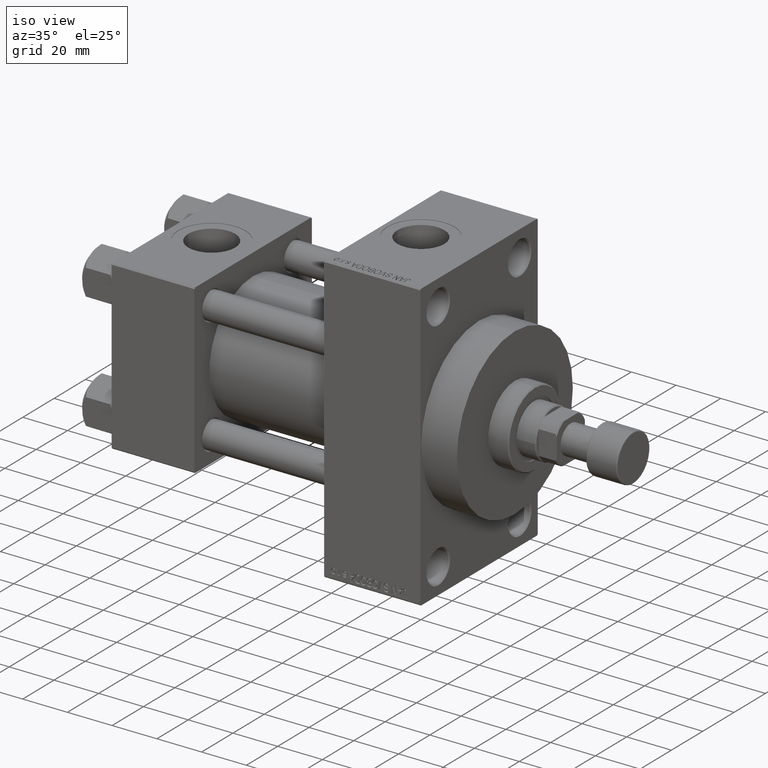
[diagram: clean part render]
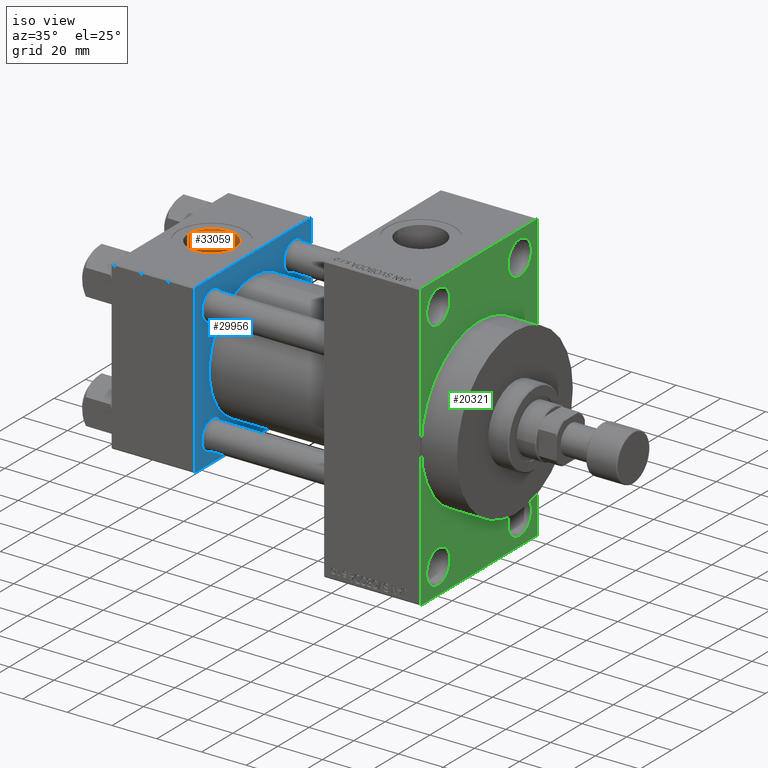
[diagram: same view with three faces highlighted in distinct colors, each labeled with its STEP entity id]
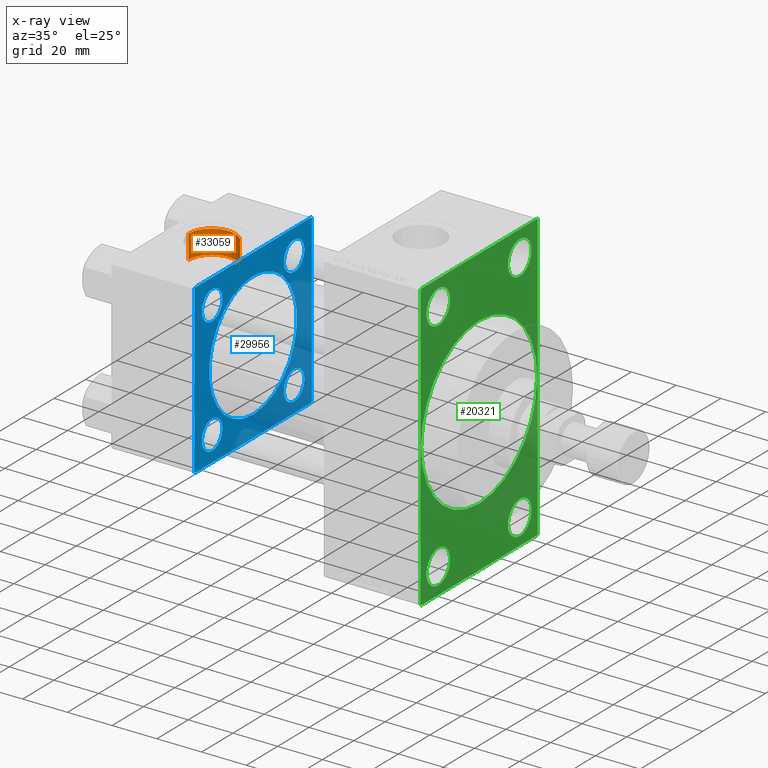
[diagram: x-ray of the same camera — body ghosted, the three highlighted faces saturated]
A machine part, iso view with three faces highlighted in distinct colors.
The next image is the same camera in x-ray (body ghosted, the three faces saturated) — at least one of them is partly hidden behind the body in this view.
Their STEP definitions:

[orange] entity #33059 — the highlighted cylindrical surface (edge-blend (fillet) strip) has radius 10.48 mm, axis along (0, 0, 1).
#441 = DIRECTION ( 'NONE',  ( -0.000000000000000000, -0.000000000000000000, 1.000000000000000000 ) ) ;
#949 = LINE ( 'NONE', #15623, #40663 ) ;
#6053 = ORIENTED_EDGE ( 'NONE', *, *, #36123, .T. ) ;
#6289 = VERTEX_POINT ( 'NONE', #15771 ) ;
#7098 = EDGE_CURVE ( 'NONE', #6289, #25369, #949, .T. ) ;
#8033 = AXIS2_PLACEMENT_3D ( 'NONE', #31068, #23619, #13234 ) ;
#10346 = VERTEX_POINT ( 'NONE', #22815 ) ;
#12453 = EDGE_CURVE ( 'NONE', #10346, #25369, #17772, .T. ) ;
#13082 = CARTESIAN_POINT ( 'NONE',  ( 28.98000000000000043, -5.204170427930421283E-15, 26.69999999999999929 ) ) ;
#13229 = DIRECTION ( 'NONE',  ( 1.000000000000000000, 0.000000000000000000, 0.000000000000000000 ) ) ;
#13234 = DIRECTION ( 'NONE',  ( 1.000000000000000000, 0.000000000000000000, 0.000000000000000000 ) ) ;
#15623 = CARTESIAN_POINT ( 'NONE',  ( 8.019999999999999574, -3.920740582423995006E-15, 26.69999999999999929 ) ) ;
#15771 = CARTESIAN_POINT ( 'NONE',  ( 8.019999999999999574, -3.920740582423995006E-15, 26.69999999999999929 ) ) ;
#17772 = CIRCLE ( 'NONE', #44673, 10.48000000000000043 ) ;
#17916 = VERTEX_POINT ( 'NONE', #13082 ) ;
#18286 = ORIENTED_EDGE ( 'NONE', *, *, #7098, .F. ) ;
#18736 = LINE ( 'NONE', #33411, #44992 ) ;
#19495 = DIRECTION ( 'NONE',  ( -0.000000000000000000, -0.000000000000000000, 1.000000000000000000 ) ) ;
#20487 = DIRECTION ( 'NONE',  ( 0.000000000000000000, 0.000000000000000000, 1.000000000000000000 ) ) ;
#22815 = CARTESIAN_POINT ( 'NONE',  ( 28.98000000000000043, -5.204170427930421283E-15, 37.29999999999999716 ) ) ;
#23619 = DIRECTION ( 'NONE',  ( -0.000000000000000000, -0.000000000000000000, 1.000000000000000000 ) ) ;
#24517 = AXIS2_PLACEMENT_3D ( 'NONE', #32481, #46680, #13229 ) ;
#25369 = VERTEX_POINT ( 'NONE', #26520 ) ;
#26520 = CARTESIAN_POINT ( 'NONE',  ( 8.019999999999999574, -3.920740582423995006E-15, 37.29999999999999716 ) ) ;
#29394 = ORIENTED_EDGE ( 'NONE', *, *, #12453, .T. ) ;
#31068 = CARTESIAN_POINT ( 'NONE',  ( 18.50000000000000000, -5.204170427930421283E-15, 26.69999999999999929 ) ) ;
#32481 = CARTESIAN_POINT ( 'NONE',  ( 18.50000000000000000, -5.204170427930421283E-15, 26.69999999999999929 ) ) ;
#33059 = ADVANCED_FACE ( 'NONE', ( #38284 ), #45744, .F. ) ;
#33411 = CARTESIAN_POINT ( 'NONE',  ( 28.98000000000000043, -5.204170427930421283E-15, 26.69999999999999929 ) ) ;
#36123 = EDGE_CURVE ( 'NONE', #17916, #10346, #18736, .T. ) ;
#38284 = FACE_OUTER_BOUND ( 'NONE', #39140, .T. ) ;
#38351 = CIRCLE ( 'NONE', #24517, 10.48000000000000043 ) ;
#39140 = EDGE_LOOP ( 'NONE', ( #18286, #41873, #6053, #29394 ) ) ;
#40663 = VECTOR ( 'NONE', #19495, 1000.000000000000000 ) ;
#41873 = ORIENTED_EDGE ( 'NONE', *, *, #43477, .F. ) ;
#43477 = EDGE_CURVE ( 'NONE', #17916, #6289, #38351, .T. ) ;
#44673 = AXIS2_PLACEMENT_3D ( 'NONE', #45048, #20487, #45761 ) ;
#44992 = VECTOR ( 'NONE', #441, 1000.000000000000000 ) ;
#45048 = CARTESIAN_POINT ( 'NONE',  ( 18.50000000000000000, -5.204170427930421283E-15, 37.29999999999999716 ) ) ;
#45744 = CYLINDRICAL_SURFACE ( 'NONE', #8033, 10.48000000000000043 ) ;
#45761 = DIRECTION ( 'NONE',  ( 1.000000000000000000, 0.000000000000000000, 0.000000000000000000 ) ) ;
#46680 = DIRECTION ( 'NONE',  ( 0.000000000000000000, 0.000000000000000000, 1.000000000000000000 ) ) ;

[blue] entity #29956 — the highlighted planar face has unit normal (-1, 0, 0).
#508 = PLANE ( 'NONE',  #15817 ) ;
#715 = VERTEX_POINT ( 'NONE', #37687 ) ;
#1204 = CARTESIAN_POINT ( 'NONE',  ( 37.00000000000000000, -2.602085213965210642E-15, 28.00000000000000000 ) ) ;
#1222 = CIRCLE ( 'NONE', #42722, 6.500000000000064837 ) ;
#1443 = CIRCLE ( 'NONE', #28346, 6.500000000000002665 ) ;
#1605 = CARTESIAN_POINT ( 'NONE',  ( 37.00000000000000000, 0.000000000000000000, 0.000000000000000000 ) ) ;
#1805 = ORIENTED_EDGE ( 'NONE', *, *, #38298, .T. ) ;
#2714 = CIRCLE ( 'NONE', #28087, 28.00000000000000000 ) ;
#3109 = DIRECTION ( 'NONE',  ( -1.000000000000000000, 0.000000000000000000, -0.000000000000000000 ) ) ;
#3690 = VERTEX_POINT ( 'NONE', #19574 ) ;
#3820 = CARTESIAN_POINT ( 'NONE',  ( 37.00000000000000000, -2.602085213965210642E-15, 0.000000000000000000 ) ) ;
#4157 = LINE ( 'NONE', #8246, #42033 ) ;
#4175 = ORIENTED_EDGE ( 'NONE', *, *, #42803, .T. ) ;
#4302 = LINE ( 'NONE', #15364, #17447 ) ;
#5209 = CARTESIAN_POINT ( 'NONE',  ( 37.00000000000000000, -37.00000000000002132, -37.50000000000000711 ) ) ;
#5362 = AXIS2_PLACEMENT_3D ( 'NONE', #27795, #20818, #23720 ) ;
#5436 = DIRECTION ( 'NONE',  ( -1.000000000000000000, 0.000000000000000000, -0.000000000000000000 ) ) ;
#5445 = LINE ( 'NONE', #5209, #40502 ) ;
#5984 = EDGE_LOOP ( 'NONE', ( #4175, #22944 ) ) ;
#6001 = CARTESIAN_POINT ( 'NONE',  ( 37.00000000000000000, 37.49999999999999289, 37.50000000000000000 ) ) ;
#6121 = CARTESIAN_POINT ( 'NONE',  ( 37.00000000000000000, 26.14999999999999858, 19.64999999999999858 ) ) ;
#6612 = DIRECTION ( 'NONE',  ( 0.000000000000000000, -1.000000000000000000, -9.251858538542972814E-17 ) ) ;
#6684 = DIRECTION ( 'NONE',  ( 1.000000000000000000, -0.000000000000000000, 0.000000000000000000 ) ) ;
#6796 = EDGE_CURVE ( 'NONE', #31946, #9458, #1443, .T. ) ;
#7085 = DIRECTION ( 'NONE',  ( -1.000000000000000000, 0.000000000000000000, -0.000000000000000000 ) ) ;
#7090 = CARTESIAN_POINT ( 'NONE',  ( 37.00000000000000000, 37.49999999999999289, -37.50000000000000000 ) ) ;
#7680 = CIRCLE ( 'NONE', #5362, 6.500000000000057732 ) ;
#8246 = CARTESIAN_POINT ( 'NONE',  ( 37.00000000000000000, -37.50000000000000711, 36.99999999999999289 ) ) ;
#8383 = CARTESIAN_POINT ( 'NONE',  ( 37.00000000000000000, -37.50000000000000000, -37.00000000000003553 ) ) ;
#8631 = VERTEX_POINT ( 'NONE', #18094 ) ;
#8691 = EDGE_CURVE ( 'NONE', #10800, #715, #39748, .T. ) ;
#8771 = CIRCLE ( 'NONE', #14162, 6.500000000000057732 ) ;
#8826 = DIRECTION ( 'NONE',  ( -1.000000000000000000, 0.000000000000000000, -0.000000000000000000 ) ) ;
#8839 = VERTEX_POINT ( 'NONE', #42115 ) ;
#9205 = DIRECTION ( 'NONE',  ( 0.000000000000000000, 0.000000000000000000, 1.000000000000000000 ) ) ;
#9453 = CARTESIAN_POINT ( 'NONE',  ( 37.00000000000000000, 26.14999999999999858, -19.65000000000000213 ) ) ;
#9458 = VERTEX_POINT ( 'NONE', #6121 ) ;
#9485 = EDGE_CURVE ( 'NONE', #13173, #23902, #7680, .T. ) ;
#9538 = FACE_BOUND ( 'NONE', #19002, .T. ) ;
#9699 = DIRECTION ( 'NONE',  ( -1.000000000000000000, 0.000000000000000000, -0.000000000000000000 ) ) ;
#10729 = CARTESIAN_POINT ( 'NONE',  ( 37.00000000000000000, -37.00000000000002132, -37.50000000000000711 ) ) ;
#10800 = VERTEX_POINT ( 'NONE', #46048 ) ;
#10823 = EDGE_CURVE ( 'NONE', #8839, #36493, #37728, .T. ) ;
#11142 = DIRECTION ( 'NONE',  ( -0.000000000000000000, -0.7071067811865474617, -0.7071067811865474617 ) ) ;
#11260 = DIRECTION ( 'NONE',  ( 0.000000000000000000, 0.000000000000000000, 1.000000000000000000 ) ) ;
#11323 = DIRECTION ( 'NONE',  ( -1.000000000000000000, 0.000000000000000000, -0.000000000000000000 ) ) ;
#12409 = ORIENTED_EDGE ( 'NONE', *, *, #38947, .T. ) ;
#12447 = FACE_BOUND ( 'NONE', #40898, .T. ) ;
#12890 = DIRECTION ( 'NONE',  ( 0.000000000000000000, 0.000000000000000000, 1.000000000000000000 ) ) ;
#13173 = VERTEX_POINT ( 'NONE', #45599 ) ;
#13787 = EDGE_CURVE ( 'NONE', #21054, #47100, #23240, .T. ) ;
#13901 = CARTESIAN_POINT ( 'NONE',  ( 37.00000000000000000, -2.602085213965210642E-15, 0.000000000000000000 ) ) ;
#13997 = CARTESIAN_POINT ( 'NONE',  ( 37.00000000000000000, 26.14999999999999858, 26.15000000000000213 ) ) ;
#14162 = AXIS2_PLACEMENT_3D ( 'NONE', #36082, #3109, #32487 ) ;
#14931 = EDGE_LOOP ( 'NONE', ( #18050, #15229 ) ) ;
#15076 = ORIENTED_EDGE ( 'NONE', *, *, #34837, .F. ) ;
#15124 = DIRECTION ( 'NONE',  ( 1.000000000000000000, -0.000000000000000000, 0.000000000000000000 ) ) ;
#15149 = AXIS2_PLACEMENT_3D ( 'NONE', #29376, #11323, #40928 ) ;
#15229 = ORIENTED_EDGE ( 'NONE', *, *, #9485, .T. ) ;
#15364 = CARTESIAN_POINT ( 'NONE',  ( 37.00000000000000000, 37.49999999999999289, -36.99999999999998579 ) ) ;
#15817 = AXIS2_PLACEMENT_3D ( 'NONE', #1605, #38668, #27841 ) ;
#16551 = ORIENTED_EDGE ( 'NONE', *, *, #10823, .T. ) ;
#16957 = DIRECTION ( 'NONE',  ( 0.000000000000000000, 9.251858538542971581E-17, -1.000000000000000000 ) ) ;
#17447 = VECTOR ( 'NONE', #34531, 1000.000000000000114 ) ;
#18050 = ORIENTED_EDGE ( 'NONE', *, *, #33161, .T. ) ;
#18094 = CARTESIAN_POINT ( 'NONE',  ( 37.00000000000000000, -37.50000000000000711, 36.99999999999999289 ) ) ;
#19002 = EDGE_LOOP ( 'NONE', ( #23182, #36091 ) ) ;
#19195 = EDGE_CURVE ( 'NONE', #9458, #31946, #36343, .T. ) ;
#19295 = AXIS2_PLACEMENT_3D ( 'NONE', #20788, #9699, #32090 ) ;
#19394 = CARTESIAN_POINT ( 'NONE',  ( 37.00000000000000000, -26.14999999999999147, -32.65000000000006963 ) ) ;
#19450 = CARTESIAN_POINT ( 'NONE',  ( 37.00000000000000000, 37.49999999999999289, 37.00000000000000000 ) ) ;
#19574 = CARTESIAN_POINT ( 'NONE',  ( 37.00000000000000000, 36.99999999999997868, -37.50000000000000000 ) ) ;
#20788 = CARTESIAN_POINT ( 'NONE',  ( 37.00000000000000000, -26.14999999999999147, 26.15000000000000924 ) ) ;
#20818 = DIRECTION ( 'NONE',  ( -1.000000000000000000, 0.000000000000000000, -0.000000000000000000 ) ) ;
#20979 = DIRECTION ( 'NONE',  ( 0.000000000000000000, -0.7071067811865474617, 0.7071067811865474617 ) ) ;
#21054 = VERTEX_POINT ( 'NONE', #1204 ) ;
#21057 = LINE ( 'NONE', #32119, #28951 ) ;
#21177 = DIRECTION ( 'NONE',  ( 0.000000000000000000, 0.000000000000000000, -1.000000000000000000 ) ) ;
#21792 = DIRECTION ( 'NONE',  ( 0.000000000000000000, 0.000000000000000000, 1.000000000000000000 ) ) ;
#22078 = ORIENTED_EDGE ( 'NONE', *, *, #38641, .T. ) ;
#22587 = CARTESIAN_POINT ( 'NONE',  ( 37.00000000000000000, 26.14999999999999858, -32.65000000000000568 ) ) ;
#22661 = FACE_OUTER_BOUND ( 'NONE', #44305, .T. ) ;
#22801 = CIRCLE ( 'NONE', #15149, 6.500000000000002665 ) ;
#22944 = ORIENTED_EDGE ( 'NONE', *, *, #28651, .T. ) ;
#23182 = ORIENTED_EDGE ( 'NONE', *, *, #19195, .T. ) ;
#23240 = CIRCLE ( 'NONE', #41685, 28.00000000000000000 ) ;
#23720 = DIRECTION ( 'NONE',  ( 0.000000000000000000, 0.000000000000000000, 1.000000000000000000 ) ) ;
#23902 = VERTEX_POINT ( 'NONE', #19394 ) ;
#24488 = CIRCLE ( 'NONE', #39870, 6.500000000000002665 ) ;
#24604 = VERTEX_POINT ( 'NONE', #8383 ) ;
#25558 = EDGE_LOOP ( 'NONE', ( #44903, #28969 ) ) ;
#26035 = DIRECTION ( 'NONE',  ( 0.000000000000000000, -1.000000000000000000, -9.251858538542971581E-17 ) ) ;
#26575 = VERTEX_POINT ( 'NONE', #9453 ) ;
#26674 = DIRECTION ( 'NONE',  ( 0.000000000000000000, 0.000000000000000000, 1.000000000000000000 ) ) ;
#26838 = CARTESIAN_POINT ( 'NONE',  ( 37.00000000000000000, -26.14999999999999147, 32.65000000000007674 ) ) ;
#27351 = CARTESIAN_POINT ( 'NONE',  ( 37.00000000000000000, 26.14999999999999858, -26.15000000000000213 ) ) ;
#27795 = CARTESIAN_POINT ( 'NONE',  ( 37.00000000000000000, -26.14999999999999147, -26.15000000000000924 ) ) ;
#27841 = DIRECTION ( 'NONE',  ( -0.000000000000000000, 0.000000000000000000, 1.000000000000000000 ) ) ;
#28087 = AXIS2_PLACEMENT_3D ( 'NONE', #13901, #6684, #11260 ) ;
#28346 = AXIS2_PLACEMENT_3D ( 'NONE', #13997, #28695, #9205 ) ;
#28651 = EDGE_CURVE ( 'NONE', #26575, #31898, #22801, .T. ) ;
#28695 = DIRECTION ( 'NONE',  ( -1.000000000000000000, 0.000000000000000000, -0.000000000000000000 ) ) ;
#28811 = VECTOR ( 'NONE', #6612, 1000.000000000000000 ) ;
#28951 = VECTOR ( 'NONE', #16957, 1000.000000000000000 ) ;
#28969 = ORIENTED_EDGE ( 'NONE', *, *, #35190, .F. ) ;
#29376 = CARTESIAN_POINT ( 'NONE',  ( 37.00000000000000000, 26.14999999999999858, -26.15000000000000213 ) ) ;
#29956 = ADVANCED_FACE ( 'NONE', ( #30105, #31450, #12447, #9538, #42280, #22661 ), #508, .F. ) ;
#30105 = FACE_BOUND ( 'NONE', #14931, .T. ) ;
#30972 = DIRECTION ( 'NONE',  ( 0.000000000000000000, 0.000000000000000000, 1.000000000000000000 ) ) ;
#31416 = ORIENTED_EDGE ( 'NONE', *, *, #8691, .T. ) ;
#31450 = FACE_BOUND ( 'NONE', #5984, .T. ) ;
#31898 = VERTEX_POINT ( 'NONE', #22587 ) ;
#31946 = VERTEX_POINT ( 'NONE', #47450 ) ;
#32003 = LINE ( 'NONE', #6001, #44327 ) ;
#32090 = DIRECTION ( 'NONE',  ( 0.000000000000000000, 0.000000000000000000, 1.000000000000000000 ) ) ;
#32119 = CARTESIAN_POINT ( 'NONE',  ( 37.00000000000000000, -37.50000000000000711, 37.49999999999999289 ) ) ;
#32332 = EDGE_CURVE ( 'NONE', #40180, #42581, #32003, .T. ) ;
#32487 = DIRECTION ( 'NONE',  ( 0.000000000000000000, 0.000000000000000000, 1.000000000000000000 ) ) ;
#32494 = EDGE_CURVE ( 'NONE', #3690, #42581, #4302, .T. ) ;
#32568 = EDGE_CURVE ( 'NONE', #8631, #24604, #21057, .T. ) ;
#33161 = EDGE_CURVE ( 'NONE', #23902, #13173, #8771, .T. ) ;
#34531 = DIRECTION ( 'NONE',  ( -0.000000000000000000, 0.7071067811865474617, 0.7071067811865474617 ) ) ;
#34837 = EDGE_CURVE ( 'NONE', #3690, #36443, #39593, .T. ) ;
#35190 = EDGE_CURVE ( 'NONE', #47100, #21054, #2714, .T. ) ;
#36082 = CARTESIAN_POINT ( 'NONE',  ( 37.00000000000000000, -26.14999999999999147, -26.15000000000000924 ) ) ;
#36091 = ORIENTED_EDGE ( 'NONE', *, *, #6796, .T. ) ;
#36186 = EDGE_CURVE ( 'NONE', #36493, #8839, #1222, .T. ) ;
#36343 = CIRCLE ( 'NONE', #37886, 6.500000000000002665 ) ;
#36443 = VERTEX_POINT ( 'NONE', #10729 ) ;
#36493 = VERTEX_POINT ( 'NONE', #26838 ) ;
#36602 = CARTESIAN_POINT ( 'NONE',  ( 37.00000000000000000, 8.269258236473776482E-16, -28.00000000000000000 ) ) ;
#36647 = VECTOR ( 'NONE', #20979, 1000.000000000000114 ) ;
#37687 = CARTESIAN_POINT ( 'NONE',  ( 37.00000000000000000, -37.00000000000000711, 37.49999999999999289 ) ) ;
#37728 = CIRCLE ( 'NONE', #19295, 6.500000000000064837 ) ;
#37886 = AXIS2_PLACEMENT_3D ( 'NONE', #40065, #7085, #21792 ) ;
#37984 = ORIENTED_EDGE ( 'NONE', *, *, #36186, .T. ) ;
#38298 = EDGE_CURVE ( 'NONE', #24604, #36443, #5445, .T. ) ;
#38641 = EDGE_CURVE ( 'NONE', #715, #8631, #4157, .T. ) ;
#38655 = DIRECTION ( 'NONE',  ( 0.000000000000000000, 0.7071067811865524577, -0.7071067811865426878 ) ) ;
#38668 = DIRECTION ( 'NONE',  ( -1.000000000000000000, 0.000000000000000000, -0.000000000000000000 ) ) ;
#38788 = ORIENTED_EDGE ( 'NONE', *, *, #32568, .T. ) ;
#38947 = EDGE_CURVE ( 'NONE', #40180, #10800, #47430, .T. ) ;
#39167 = VECTOR ( 'NONE', #26035, 1000.000000000000000 ) ;
#39177 = CARTESIAN_POINT ( 'NONE',  ( 37.00000000000000000, 37.49999999999999289, -36.99999999999998579 ) ) ;
#39498 = CARTESIAN_POINT ( 'NONE',  ( 37.00000000000000000, 36.99999999999999289, 37.50000000000000000 ) ) ;
#39593 = LINE ( 'NONE', #7090, #28811 ) ;
#39748 = LINE ( 'NONE', #40468, #39167 ) ;
#39870 = AXIS2_PLACEMENT_3D ( 'NONE', #27351, #5436, #12890 ) ;
#40065 = CARTESIAN_POINT ( 'NONE',  ( 37.00000000000000000, 26.14999999999999858, 26.15000000000000213 ) ) ;
#40180 = VERTEX_POINT ( 'NONE', #19450 ) ;
#40186 = ORIENTED_EDGE ( 'NONE', *, *, #32332, .F. ) ;
#40468 = CARTESIAN_POINT ( 'NONE',  ( 37.00000000000000000, 37.49999999999999289, 37.50000000000000000 ) ) ;
#40502 = VECTOR ( 'NONE', #38655, 1000.000000000000000 ) ;
#40757 = ORIENTED_EDGE ( 'NONE', *, *, #32494, .T. ) ;
#40898 = EDGE_LOOP ( 'NONE', ( #16551, #37984 ) ) ;
#40928 = DIRECTION ( 'NONE',  ( 0.000000000000000000, 0.000000000000000000, 1.000000000000000000 ) ) ;
#41685 = AXIS2_PLACEMENT_3D ( 'NONE', #3820, #15124, #26674 ) ;
#41808 = CARTESIAN_POINT ( 'NONE',  ( 37.00000000000000000, -26.14999999999999147, 26.15000000000000924 ) ) ;
#42033 = VECTOR ( 'NONE', #11142, 1000.000000000000114 ) ;
#42115 = CARTESIAN_POINT ( 'NONE',  ( 37.00000000000000000, -26.14999999999999147, 19.64999999999994529 ) ) ;
#42280 = FACE_BOUND ( 'NONE', #25558, .T. ) ;
#42581 = VERTEX_POINT ( 'NONE', #39177 ) ;
#42722 = AXIS2_PLACEMENT_3D ( 'NONE', #41808, #8826, #30972 ) ;
#42803 = EDGE_CURVE ( 'NONE', #31898, #26575, #24488, .T. ) ;
#44305 = EDGE_LOOP ( 'NONE', ( #15076, #40757, #40186, #12409, #31416, #22078, #38788, #1805 ) ) ;
#44327 = VECTOR ( 'NONE', #21177, 1000.000000000000000 ) ;
#44903 = ORIENTED_EDGE ( 'NONE', *, *, #13787, .F. ) ;
#45599 = CARTESIAN_POINT ( 'NONE',  ( 37.00000000000000000, -26.14999999999999147, -19.64999999999995239 ) ) ;
#46048 = CARTESIAN_POINT ( 'NONE',  ( 37.00000000000000000, 36.99999999999999289, 37.50000000000000000 ) ) ;
#47100 = VERTEX_POINT ( 'NONE', #36602 ) ;
#47430 = LINE ( 'NONE', #39498, #36647 ) ;
#47450 = CARTESIAN_POINT ( 'NONE',  ( 37.00000000000000000, 26.14999999999999858, 32.65000000000001279 ) ) ;

[green] entity #20321 — the highlighted planar face has unit normal (-1, 0, 0).
#61 = CARTESIAN_POINT ( 'NONE',  ( 138.0000000000000000, 37.50000000000000000, 63.99999999999998579 ) ) ;
#309 = EDGE_CURVE ( 'NONE', #11282, #1922, #46200, .T. ) ;
#505 = VERTEX_POINT ( 'NONE', #13168 ) ;
#599 = FACE_BOUND ( 'NONE', #46250, .T. ) ;
#1366 = VERTEX_POINT ( 'NONE', #15452 ) ;
#1922 = VERTEX_POINT ( 'NONE', #24531 ) ;
#1935 = CARTESIAN_POINT ( 'NONE',  ( 138.0000000000000000, 26.00000000000000000, -44.99999999999998579 ) ) ;
#2046 = CARTESIAN_POINT ( 'NONE',  ( 138.0000000000000000, 37.50000000000000000, 63.99999999999998579 ) ) ;
#2096 = EDGE_LOOP ( 'NONE', ( #4184, #7494, #45009, #22618, #37029, #36551, #38176, #12054 ) ) ;
#2858 = DIRECTION ( 'NONE',  ( 0.000000000000000000, -0.7071067811865672237, 0.7071067811865279218 ) ) ;
#2897 = CARTESIAN_POINT ( 'NONE',  ( 138.0000000000000000, 26.00000000000000000, -52.49999999999999289 ) ) ;
#3255 = CARTESIAN_POINT ( 'NONE',  ( 138.0000000000000000, 37.50000000000000000, 63.49999999999998579 ) ) ;
#3281 = DIRECTION ( 'NONE',  ( 0.000000000000000000, 0.000000000000000000, 1.000000000000000000 ) ) ;
#3417 = CIRCLE ( 'NONE', #10320, 7.500000000000007105 ) ;
#3777 = EDGE_CURVE ( 'NONE', #505, #37441, #30240, .T. ) ;
#3778 = CARTESIAN_POINT ( 'NONE',  ( 138.0000000000000000, -25.99999999999999645, -52.49999999999999289 ) ) ;
#3790 = AXIS2_PLACEMENT_3D ( 'NONE', #23825, #14149, #10791 ) ;
#4184 = ORIENTED_EDGE ( 'NONE', *, *, #31644, .T. ) ;
#4502 = CARTESIAN_POINT ( 'NONE',  ( 138.0000000000000000, -37.49999999999999289, 63.49999999999994316 ) ) ;
#4975 = LINE ( 'NONE', #30734, #45297 ) ;
#5040 = VECTOR ( 'NONE', #16971, 1000.000000000000000 ) ;
#5141 = VECTOR ( 'NONE', #43427, 1000.000000000000000 ) ;
#5600 = VERTEX_POINT ( 'NONE', #37853 ) ;
#6420 = CARTESIAN_POINT ( 'NONE',  ( 138.0000000000000000, -25.99999999999999645, 52.50000000000000000 ) ) ;
#7494 = ORIENTED_EDGE ( 'NONE', *, *, #40086, .T. ) ;
#7585 = FACE_BOUND ( 'NONE', #31292, .T. ) ;
#7665 = DIRECTION ( 'NONE',  ( -1.000000000000000000, 0.000000000000000000, -0.000000000000000000 ) ) ;
#7755 = CARTESIAN_POINT ( 'NONE',  ( 138.0000000000000000, -37.49999999999999289, 63.99999999999997158 ) ) ;
#7824 = FACE_OUTER_BOUND ( 'NONE', #2096, .T. ) ;
#7999 = EDGE_CURVE ( 'NONE', #37441, #505, #28386, .T. ) ;
#8004 = EDGE_CURVE ( 'NONE', #37920, #15091, #8392, .T. ) ;
#8392 = CIRCLE ( 'NONE', #3790, 7.500000000000007105 ) ;
#9049 = DIRECTION ( 'NONE',  ( 0.000000000000000000, -1.000000000000000000, -1.850371707708594563E-16 ) ) ;
#9613 = CARTESIAN_POINT ( 'NONE',  ( 138.0000000000000000, 36.99999999999997158, 63.99999999999998579 ) ) ;
#9862 = VERTEX_POINT ( 'NONE', #17097 ) ;
#10212 = CARTESIAN_POINT ( 'NONE',  ( 138.0000000000000000, -25.99999999999999645, 44.99999999999999289 ) ) ;
#10320 = AXIS2_PLACEMENT_3D ( 'NONE', #3778, #33618, #47578 ) ;
#10791 = DIRECTION ( 'NONE',  ( 0.000000000000000000, 0.000000000000000000, 1.000000000000000000 ) ) ;
#11246 = DIRECTION ( 'NONE',  ( -1.000000000000000000, 0.000000000000000000, -0.000000000000000000 ) ) ;
#11276 = CARTESIAN_POINT ( 'NONE',  ( 138.0000000000000000, -25.99999999999999645, -60.00000000000000000 ) ) ;
#11282 = VERTEX_POINT ( 'NONE', #3255 ) ;
#11509 = CARTESIAN_POINT ( 'NONE',  ( 138.0000000000000000, 26.00000000000000000, 52.49999999999999289 ) ) ;
#12054 = ORIENTED_EDGE ( 'NONE', *, *, #32670, .T. ) ;
#12657 = AXIS2_PLACEMENT_3D ( 'NONE', #18718, #11246, #25941 ) ;
#13122 = ORIENTED_EDGE ( 'NONE', *, *, #14722, .T. ) ;
#13168 = CARTESIAN_POINT ( 'NONE',  ( 138.0000000000000000, 4.531193156845206793E-15, -37.00000000000000000 ) ) ;
#13675 = DIRECTION ( 'NONE',  ( 0.000000000000000000, 0.000000000000000000, -1.000000000000000000 ) ) ;
#13865 = ORIENTED_EDGE ( 'NONE', *, *, #14788, .T. ) ;
#14097 = CARTESIAN_POINT ( 'NONE',  ( 138.0000000000000000, 0.000000000000000000, 37.00000000000000000 ) ) ;
#14149 = DIRECTION ( 'NONE',  ( -1.000000000000000000, 0.000000000000000000, -0.000000000000000000 ) ) ;
#14246 = VECTOR ( 'NONE', #40253, 1000.000000000000000 ) ;
#14288 = LINE ( 'NONE', #43668, #5141 ) ;
#14477 = DIRECTION ( 'NONE',  ( 0.000000000000000000, 0.000000000000000000, -1.000000000000000000 ) ) ;
#14722 = EDGE_CURVE ( 'NONE', #15091, #37920, #20181, .T. ) ;
#14788 = EDGE_CURVE ( 'NONE', #19483, #9862, #47065, .T. ) ;
#15034 = PLANE ( 'NONE',  #27147 ) ;
#15091 = VERTEX_POINT ( 'NONE', #10212 ) ;
#15452 = CARTESIAN_POINT ( 'NONE',  ( 138.0000000000000000, -36.99999999999995737, 63.99999999999997158 ) ) ;
#15918 = VECTOR ( 'NONE', #35350, 999.9999999999998863 ) ;
#16420 = DIRECTION ( 'NONE',  ( 1.000000000000000000, 0.000000000000000000, 0.000000000000000000 ) ) ;
#16915 = CARTESIAN_POINT ( 'NONE',  ( 138.0000000000000000, 26.00000000000000000, 60.00000000000000000 ) ) ;
#16971 = DIRECTION ( 'NONE',  ( 0.000000000000000000, -1.000000000000000000, -1.850371707708594563E-16 ) ) ;
#17097 = CARTESIAN_POINT ( 'NONE',  ( 138.0000000000000000, 26.00000000000000000, -60.00000000000000000 ) ) ;
#17464 = EDGE_CURVE ( 'NONE', #38563, #40074, #29553, .T. ) ;
#18718 = CARTESIAN_POINT ( 'NONE',  ( 138.0000000000000000, 26.00000000000000000, 52.49999999999999289 ) ) ;
#18984 = DIRECTION ( 'NONE',  ( 0.000000000000000000, 0.000000000000000000, 1.000000000000000000 ) ) ;
#19472 = EDGE_CURVE ( 'NONE', #25392, #47392, #39404, .T. ) ;
#19483 = VERTEX_POINT ( 'NONE', #1935 ) ;
#19767 = ORIENTED_EDGE ( 'NONE', *, *, #34599, .T. ) ;
#20046 = DIRECTION ( 'NONE',  ( 0.000000000000000000, 0.000000000000000000, -1.000000000000000000 ) ) ;
#20181 = CIRCLE ( 'NONE', #30177, 7.500000000000007105 ) ;
#20183 = EDGE_LOOP ( 'NONE', ( #13122, #46985 ) ) ;
#20321 = ADVANCED_FACE ( 'NONE', ( #33343, #7585, #41504, #599, #22979, #7824 ), #15034, .F. ) ;
#20689 = LINE ( 'NONE', #46427, #15918 ) ;
#21488 = ORIENTED_EDGE ( 'NONE', *, *, #19472, .T. ) ;
#21691 = VECTOR ( 'NONE', #36769, 1000.000000000000000 ) ;
#21693 = DIRECTION ( 'NONE',  ( 0.000000000000000000, 0.000000000000000000, 1.000000000000000000 ) ) ;
#22108 = CARTESIAN_POINT ( 'NONE',  ( 138.0000000000000000, 37.49999999999999289, -63.50000000000001421 ) ) ;
#22618 = ORIENTED_EDGE ( 'NONE', *, *, #17464, .T. ) ;
#22922 = CARTESIAN_POINT ( 'NONE',  ( 138.0000000000000000, -25.99999999999999645, -52.49999999999999289 ) ) ;
#22979 = FACE_BOUND ( 'NONE', #47109, .T. ) ;
#23002 = AXIS2_PLACEMENT_3D ( 'NONE', #39203, #35580, #13675 ) ;
#23076 = ORIENTED_EDGE ( 'NONE', *, *, #3777, .F. ) ;
#23158 = DIRECTION ( 'NONE',  ( 0.000000000000000000, 0.000000000000000000, 1.000000000000000000 ) ) ;
#23429 = CIRCLE ( 'NONE', #12657, 7.500000000000007105 ) ;
#23825 = CARTESIAN_POINT ( 'NONE',  ( 138.0000000000000000, -25.99999999999999645, 52.50000000000000000 ) ) ;
#24261 = ORIENTED_EDGE ( 'NONE', *, *, #33573, .T. ) ;
#24306 = ORIENTED_EDGE ( 'NONE', *, *, #7999, .F. ) ;
#24353 = CIRCLE ( 'NONE', #30500, 7.500000000000007105 ) ;
#24372 = CARTESIAN_POINT ( 'NONE',  ( 138.0000000000000000, 0.000000000000000000, 0.000000000000000000 ) ) ;
#24435 = EDGE_LOOP ( 'NONE', ( #39620, #13865 ) ) ;
#24501 = CARTESIAN_POINT ( 'NONE',  ( 138.0000000000000000, -25.99999999999999645, -44.99999999999998579 ) ) ;
#24531 = CARTESIAN_POINT ( 'NONE',  ( 138.0000000000000000, 36.99999999999997158, 63.99999999999998579 ) ) ;
#25392 = VERTEX_POINT ( 'NONE', #24501 ) ;
#25493 = CARTESIAN_POINT ( 'NONE',  ( 138.0000000000000000, 37.49999999999999289, -63.50000000000001421 ) ) ;
#25642 = AXIS2_PLACEMENT_3D ( 'NONE', #24372, #16420, #20046 ) ;
#25689 = DIRECTION ( 'NONE',  ( -1.000000000000000000, 0.000000000000000000, -0.000000000000000000 ) ) ;
#25941 = DIRECTION ( 'NONE',  ( 0.000000000000000000, 0.000000000000000000, 1.000000000000000000 ) ) ;
#26209 = EDGE_CURVE ( 'NONE', #11282, #40074, #40493, .T. ) ;
#26353 = EDGE_CURVE ( 'NONE', #1922, #1366, #31661, .T. ) ;
#26358 = AXIS2_PLACEMENT_3D ( 'NONE', #22922, #33968, #23158 ) ;
#26697 = VERTEX_POINT ( 'NONE', #16915 ) ;
#27114 = AXIS2_PLACEMENT_3D ( 'NONE', #29999, #40593, #30235 ) ;
#27147 = AXIS2_PLACEMENT_3D ( 'NONE', #37181, #29729, #36944 ) ;
#28386 = CIRCLE ( 'NONE', #23002, 37.00000000000000000 ) ;
#29114 = CIRCLE ( 'NONE', #29882, 7.500000000000007105 ) ;
#29553 = LINE ( 'NONE', #22108, #21691 ) ;
#29653 = LINE ( 'NONE', #7755, #30479 ) ;
#29729 = DIRECTION ( 'NONE',  ( -1.000000000000000000, 0.000000000000000000, -0.000000000000000000 ) ) ;
#29882 = AXIS2_PLACEMENT_3D ( 'NONE', #11509, #7665, #18984 ) ;
#29999 = CARTESIAN_POINT ( 'NONE',  ( 138.0000000000000000, 26.00000000000000000, -52.49999999999999289 ) ) ;
#30142 = VECTOR ( 'NONE', #2858, 1000.000000000000000 ) ;
#30177 = AXIS2_PLACEMENT_3D ( 'NONE', #6420, #25689, #3281 ) ;
#30235 = DIRECTION ( 'NONE',  ( 0.000000000000000000, 0.000000000000000000, 1.000000000000000000 ) ) ;
#30240 = CIRCLE ( 'NONE', #25642, 37.00000000000000000 ) ;
#30479 = VECTOR ( 'NONE', #14477, 1000.000000000000000 ) ;
#30500 = AXIS2_PLACEMENT_3D ( 'NONE', #2897, #39974, #21693 ) ;
#30734 = CARTESIAN_POINT ( 'NONE',  ( 138.0000000000000000, 37.49999999999999289, -64.00000000000000000 ) ) ;
#31292 = EDGE_LOOP ( 'NONE', ( #24261, #21488 ) ) ;
#31644 = EDGE_CURVE ( 'NONE', #44599, #33963, #29653, .T. ) ;
#31661 = LINE ( 'NONE', #2046, #5040 ) ;
#32670 = EDGE_CURVE ( 'NONE', #1366, #44599, #14288, .T. ) ;
#33343 = FACE_BOUND ( 'NONE', #20183, .T. ) ;
#33573 = EDGE_CURVE ( 'NONE', #47392, #25392, #3417, .T. ) ;
#33618 = DIRECTION ( 'NONE',  ( -1.000000000000000000, 0.000000000000000000, -0.000000000000000000 ) ) ;
#33963 = VERTEX_POINT ( 'NONE', #44342 ) ;
#33968 = DIRECTION ( 'NONE',  ( -1.000000000000000000, 0.000000000000000000, -0.000000000000000000 ) ) ;
#34599 = EDGE_CURVE ( 'NONE', #38861, #26697, #23429, .T. ) ;
#35350 = DIRECTION ( 'NONE',  ( 0.000000000000000000, 0.7071067811865574537, -0.7071067811865376918 ) ) ;
#35580 = DIRECTION ( 'NONE',  ( 1.000000000000000000, 0.000000000000000000, 0.000000000000000000 ) ) ;
#36551 = ORIENTED_EDGE ( 'NONE', *, *, #309, .T. ) ;
#36769 = DIRECTION ( 'NONE',  ( -0.000000000000000000, 0.7071067811865573427, 0.7071067811865378028 ) ) ;
#36944 = DIRECTION ( 'NONE',  ( -0.000000000000000000, 0.000000000000000000, 1.000000000000000000 ) ) ;
#37029 = ORIENTED_EDGE ( 'NONE', *, *, #26209, .F. ) ;
#37181 = CARTESIAN_POINT ( 'NONE',  ( 138.0000000000000000, 0.000000000000000000, 0.000000000000000000 ) ) ;
#37441 = VERTEX_POINT ( 'NONE', #14097 ) ;
#37853 = CARTESIAN_POINT ( 'NONE',  ( 138.0000000000000000, -36.99999999999993605, -64.00000000000001421 ) ) ;
#37920 = VERTEX_POINT ( 'NONE', #45996 ) ;
#38176 = ORIENTED_EDGE ( 'NONE', *, *, #26353, .T. ) ;
#38563 = VERTEX_POINT ( 'NONE', #41512 ) ;
#38861 = VERTEX_POINT ( 'NONE', #43590 ) ;
#38913 = EDGE_CURVE ( 'NONE', #9862, #19483, #24353, .T. ) ;
#39203 = CARTESIAN_POINT ( 'NONE',  ( 138.0000000000000000, 0.000000000000000000, 0.000000000000000000 ) ) ;
#39404 = CIRCLE ( 'NONE', #26358, 7.500000000000007105 ) ;
#39620 = ORIENTED_EDGE ( 'NONE', *, *, #38913, .T. ) ;
#39974 = DIRECTION ( 'NONE',  ( -1.000000000000000000, 0.000000000000000000, -0.000000000000000000 ) ) ;
#40074 = VERTEX_POINT ( 'NONE', #25493 ) ;
#40086 = EDGE_CURVE ( 'NONE', #33963, #5600, #20689, .T. ) ;
#40253 = DIRECTION ( 'NONE',  ( 0.000000000000000000, -5.421010862427522170E-17, -1.000000000000000000 ) ) ;
#40480 = ORIENTED_EDGE ( 'NONE', *, *, #47455, .T. ) ;
#40493 = LINE ( 'NONE', #61, #14246 ) ;
#40593 = DIRECTION ( 'NONE',  ( -1.000000000000000000, 0.000000000000000000, -0.000000000000000000 ) ) ;
#41504 = FACE_BOUND ( 'NONE', #24435, .T. ) ;
#41512 = CARTESIAN_POINT ( 'NONE',  ( 138.0000000000000000, 36.99999999999999289, -64.00000000000000000 ) ) ;
#43427 = DIRECTION ( 'NONE',  ( -0.000000000000000000, -0.7071067811865524577, -0.7071067811865426878 ) ) ;
#43590 = CARTESIAN_POINT ( 'NONE',  ( 138.0000000000000000, 26.00000000000000000, 44.99999999999998579 ) ) ;
#43668 = CARTESIAN_POINT ( 'NONE',  ( 138.0000000000000000, -37.49999999999999289, 63.49999999999994316 ) ) ;
#44342 = CARTESIAN_POINT ( 'NONE',  ( 138.0000000000000000, -37.49999999999999289, -63.49999999999997158 ) ) ;
#44599 = VERTEX_POINT ( 'NONE', #4502 ) ;
#45009 = ORIENTED_EDGE ( 'NONE', *, *, #45322, .F. ) ;
#45297 = VECTOR ( 'NONE', #9049, 1000.000000000000000 ) ;
#45322 = EDGE_CURVE ( 'NONE', #38563, #5600, #4975, .T. ) ;
#45996 = CARTESIAN_POINT ( 'NONE',  ( 138.0000000000000000, -25.99999999999999645, 60.00000000000000711 ) ) ;
#46200 = LINE ( 'NONE', #9613, #30142 ) ;
#46250 = EDGE_LOOP ( 'NONE', ( #19767, #40480 ) ) ;
#46427 = CARTESIAN_POINT ( 'NONE',  ( 138.0000000000000000, -36.99999999999993605, -64.00000000000001421 ) ) ;
#46985 = ORIENTED_EDGE ( 'NONE', *, *, #8004, .T. ) ;
#47065 = CIRCLE ( 'NONE', #27114, 7.500000000000007105 ) ;
#47109 = EDGE_LOOP ( 'NONE', ( #24306, #23076 ) ) ;
#47392 = VERTEX_POINT ( 'NONE', #11276 ) ;
#47455 = EDGE_CURVE ( 'NONE', #26697, #38861, #29114, .T. ) ;
#47578 = DIRECTION ( 'NONE',  ( 0.000000000000000000, 0.000000000000000000, 1.000000000000000000 ) ) ;